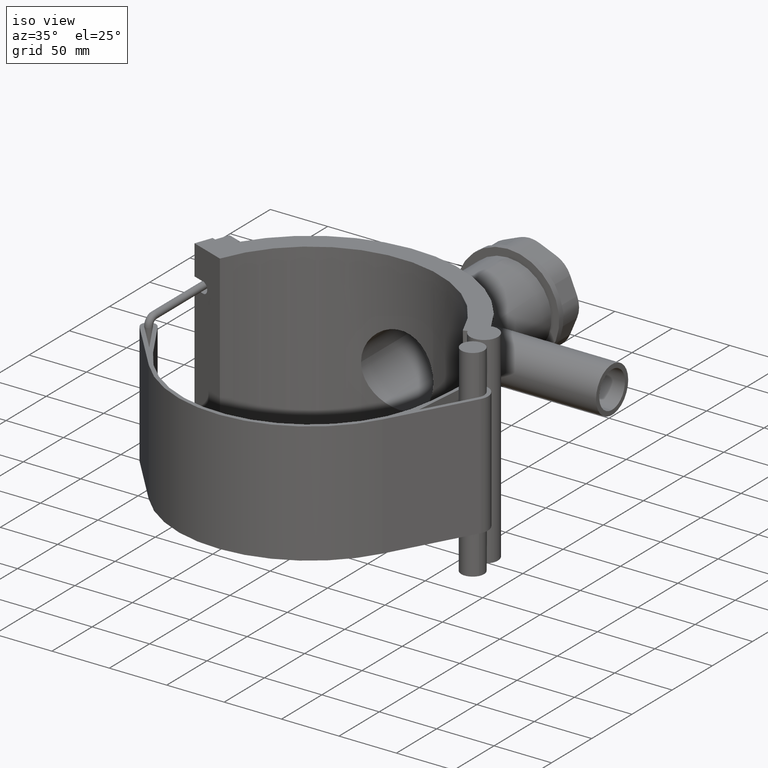
[diagram: clean part render]
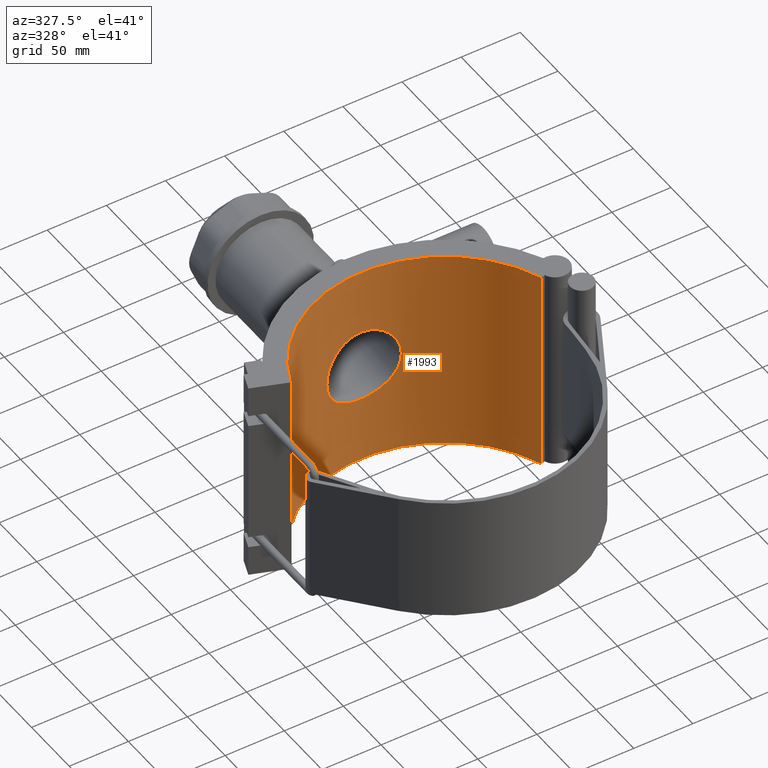
[diagram: tour spotlight — one face highlighted and labeled with its STEP entity id]
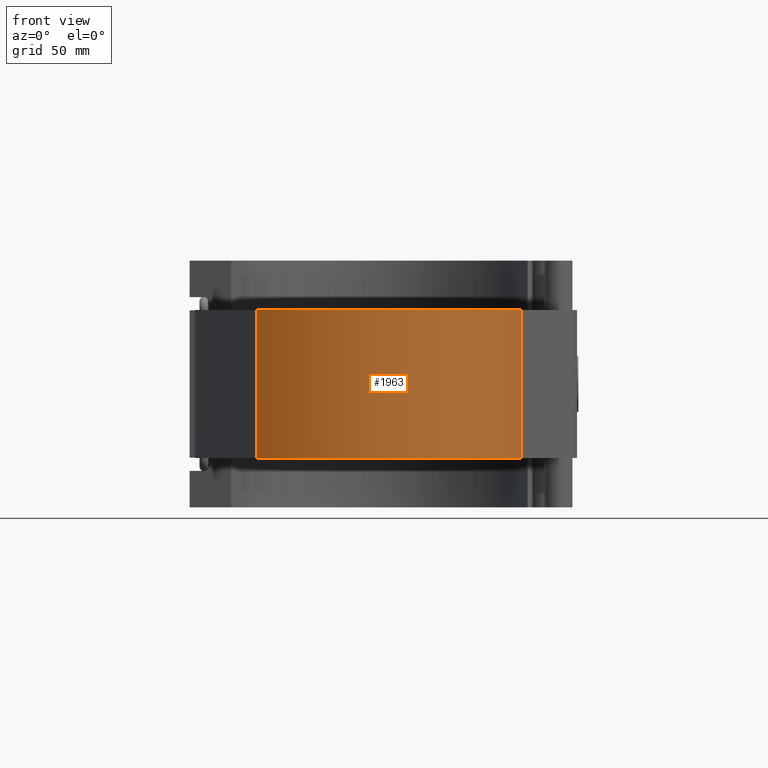
[diagram: tour spotlight — one face highlighted and labeled with its STEP entity id]
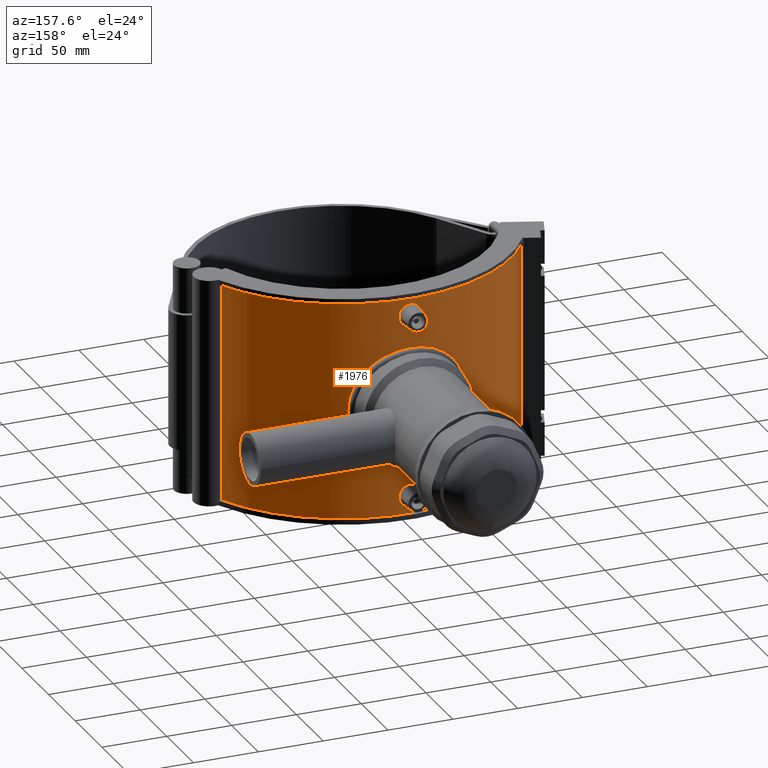
[diagram: tour spotlight — one face highlighted and labeled with its STEP entity id]
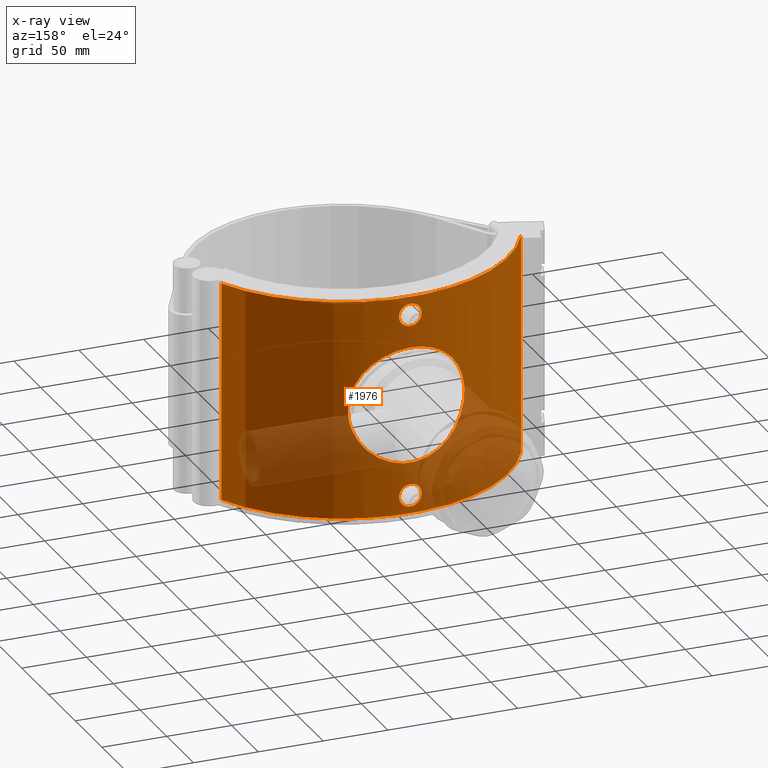
[diagram: x-ray of the same camera — body ghosted, this tour face saturated]
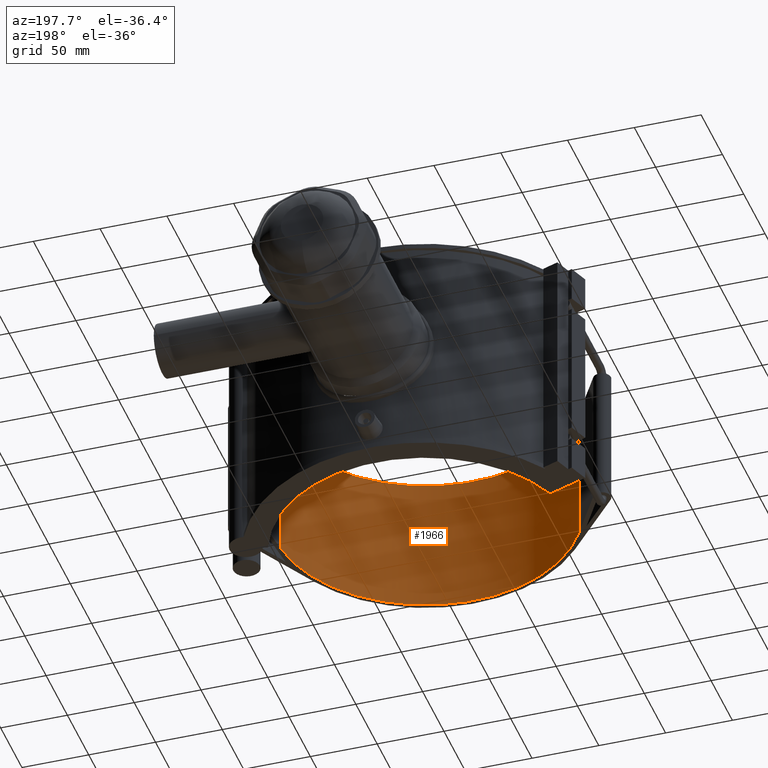
[diagram: tour spotlight — one face highlighted and labeled with its STEP entity id]
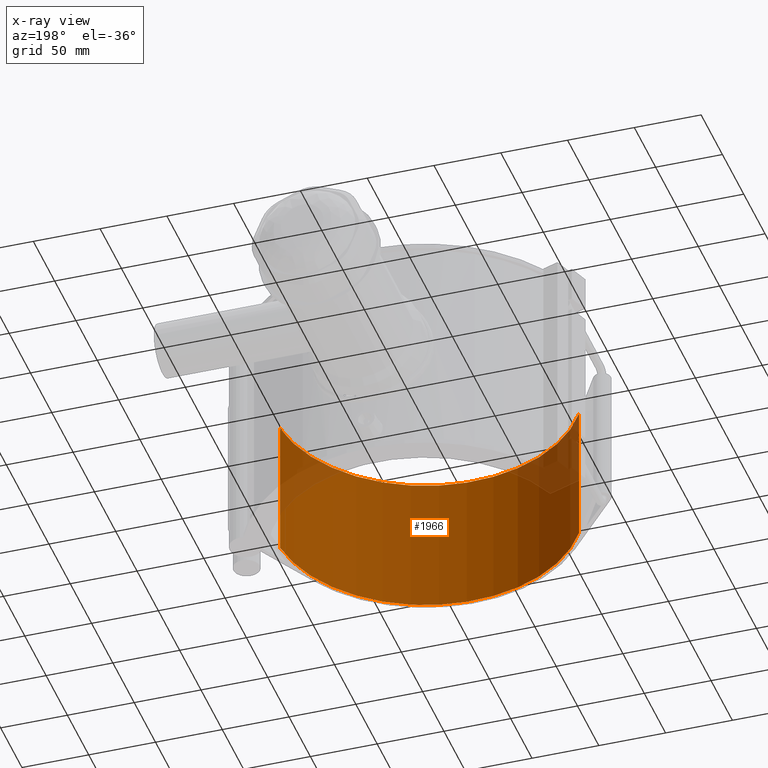
[diagram: x-ray of the same camera — body ghosted, this tour face saturated]
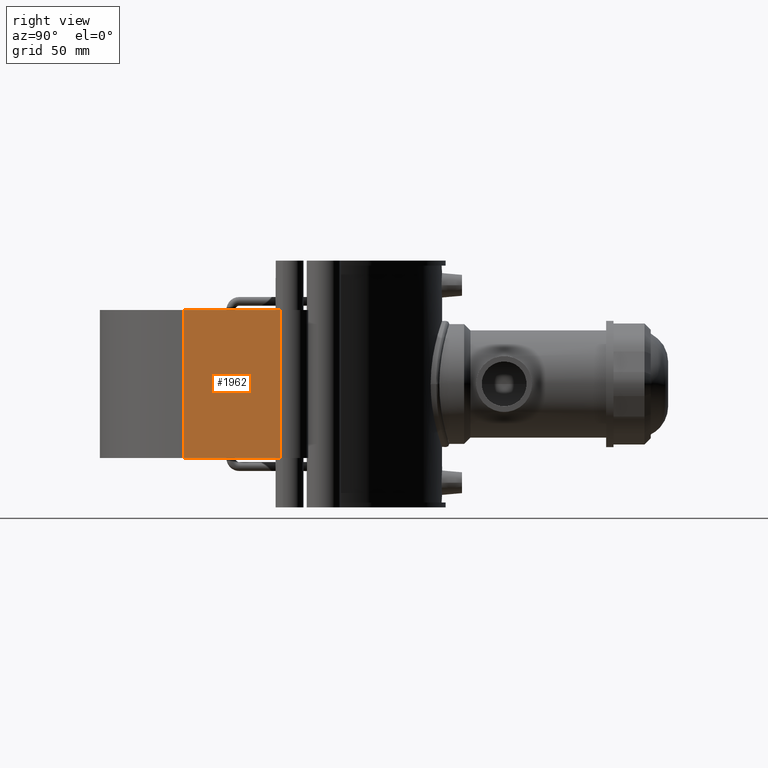
[diagram: tour spotlight — one face highlighted and labeled with its STEP entity id]
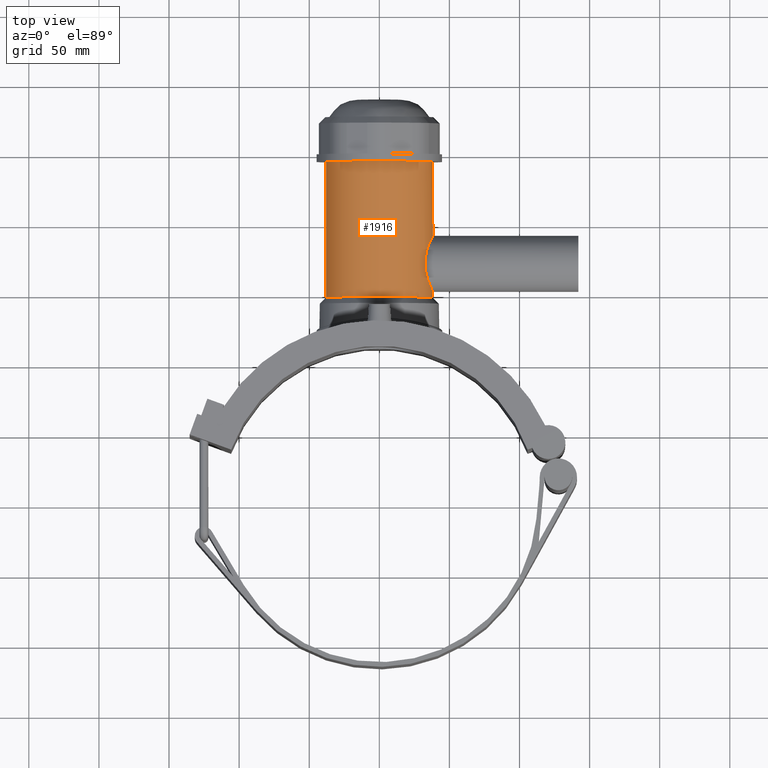
[diagram: tour spotlight — one face highlighted and labeled with its STEP entity id]
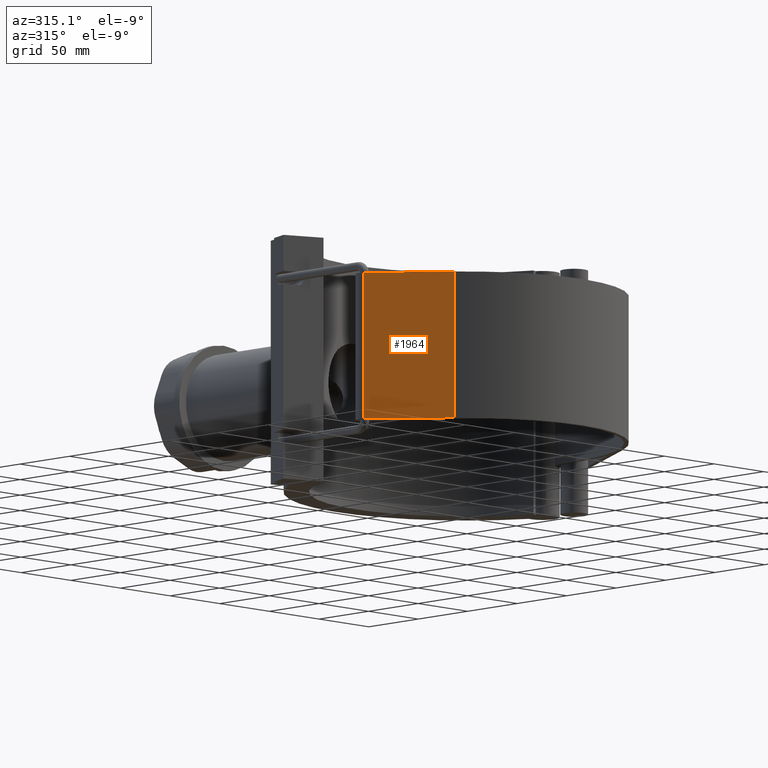
[diagram: tour spotlight — one face highlighted and labeled with its STEP entity id]
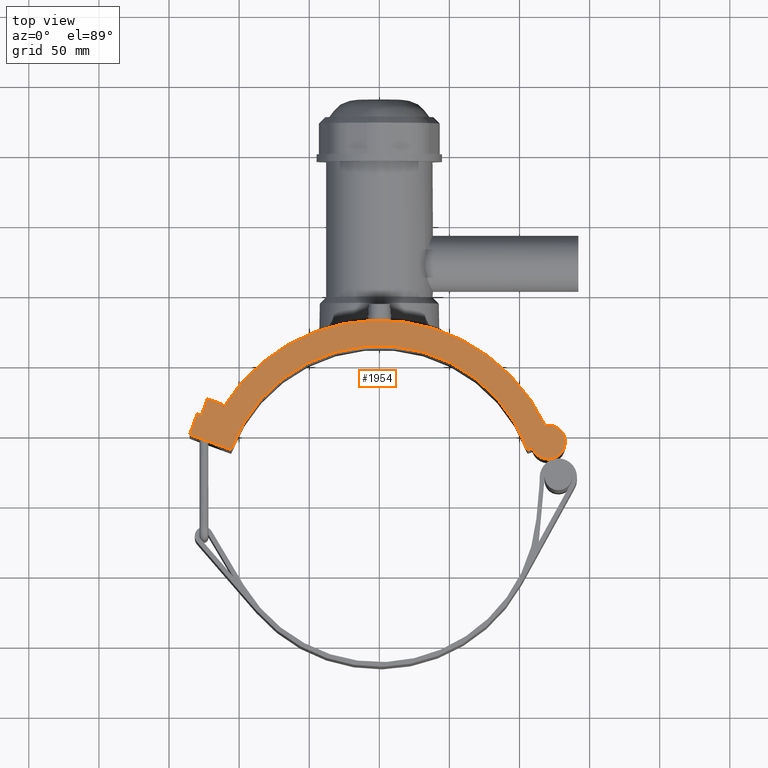
[diagram: tour spotlight — one face highlighted and labeled with its STEP entity id]
A machine part: a face-by-face anatomy tour. The part has 121 B-rep faces; the first image is the clean iso view, then the 8 largest visible faces are spotlighted one at a time (largest first), each with its STEP entity span.

Face 1 — auxiliary view, entity #1993. In plain terms, the highlighted cylindrical surface (partial cylindrical patch) has radius 112.5 mm, axis along (0, 0, 1).
Definition (entity closure, byte-faithful):
#138=LINE('',#3480,#299);
#199=LINE('',#3632,#360);
#299=VECTOR('',#2559,176.);
#360=VECTOR('',#2726,176.);
#399=FACE_BOUND('',#732,.T.);
#400=B_SPLINE_CURVE_WITH_KNOTS('',3,(#2801,#2802,#2803,#2804,#2805,#2806,
#2807,#2808,#2809,#2810,#2811,#2812,#2813,#2814,#2815,#2816,#2817,#2818,
#2819,#2820,#2821,#2822,#2823,#2824,#2825,#2826,#2827,#2828,#2829,#2830,
#2831,#2832,#2833,#2834,#2835,#2836,#2837,#2838,#2839,#2840,#2841,#2842,
#2843,#2844,#2845,#2846,#2847,#2848,#2849,#2850,#2851,#2852,#2853,#2854,
#2855,#2856,#2857,#2858,#2859,#2860,#2861,#2862,#2863,#2864,#2865,#2866),
 .UNSPECIFIED.,.T.,.F.,(4,2,2,2,2,2,2,2,2,2,2,2,2,2,2,2,2,2,2,2,2,2,2,2,
2,2,2,2,2,2,2,2,4),(0.,0.596804156351748,1.1936083127035,1.79041246905524,
2.38721662540699,2.983887413252,3.580558201097,4.17722898894201,4.77389977678702,
5.37057056463202,5.96724135247703,6.56391214032204,7.16058292816704,7.75738708451879,
8.35419124087054,8.95099539722229,9.54779955357403,10.1446037099258,10.7414078662775,
11.3382120226293,11.935016178981,12.531686966826,13.128357754671,13.725028542516,
14.321699330361,14.9183701182061,15.5150409060511,16.1117116938961,16.7083824817411,
17.3051866380928,17.9019907944446,18.4987949507963,19.0955991071481),
 .UNSPECIFIED.);
#451=CYLINDRICAL_SURFACE('',#2207,112.5);
#572=FACE_OUTER_BOUND('',#731,.T.);
#731=EDGE_LOOP('',(#1800,#1801,#1802,#1803));
#732=EDGE_LOOP('',(#1804));
#793=CIRCLE('',#2145,112.5);
#798=CIRCLE('',#2151,112.5);
#819=VERTEX_POINT('',#2800);
#942=VERTEX_POINT('',#3477);
#943=VERTEX_POINT('',#3479);
#970=VERTEX_POINT('',#3572);
#975=VERTEX_POINT('',#3584);
#997=EDGE_CURVE('',#819,#819,#400,.T.);
#1168=EDGE_CURVE('',#943,#942,#138,.T.);
#1216=EDGE_CURVE('',#943,#970,#793,.T.);
#1223=EDGE_CURVE('',#975,#942,#798,.T.);
#1245=EDGE_CURVE('',#975,#970,#199,.T.);
#1800=ORIENTED_EDGE('',*,*,#1168,.T.);
#1801=ORIENTED_EDGE('',*,*,#1223,.F.);
#1802=ORIENTED_EDGE('',*,*,#1245,.T.);
#1803=ORIENTED_EDGE('',*,*,#1216,.F.);
#1804=ORIENTED_EDGE('',*,*,#997,.T.);
#1993=ADVANCED_FACE('',(#572,#399),#451,.F.);
#2145=AXIS2_PLACEMENT_3D('',#3573,#2649,#2650);
#2151=AXIS2_PLACEMENT_3D('',#3586,#2663,#2664);
#2207=AXIS2_PLACEMENT_3D('',#3946,#2793,#2794);
#2559=DIRECTION('',(0.,0.,-1.));
#2649=DIRECTION('center_axis',(0.,0.,-1.));
#2650=DIRECTION('ref_axis',(-1.,0.,0.));
#2663=DIRECTION('center_axis',(0.,0.,1.));
#2664=DIRECTION('ref_axis',(-1.,0.,0.));
#2726=DIRECTION('',(0.,0.,1.));
#2793=DIRECTION('center_axis',(0.,0.,1.));
#2794=DIRECTION('ref_axis',(-1.,0.,0.));
#2800=CARTESIAN_POINT('',(-31.5,108.,4.10782519111308E-14));
#2801=CARTESIAN_POINT('Ctrl Pts',(-31.5,108.,4.10782519111308E-14));
#2802=CARTESIAN_POINT('Ctrl Pts',(-31.5,108.,1.9893471878392));
#2803=CARTESIAN_POINT('Ctrl Pts',(-31.3085110773124,108.056472632274,4.04299343177657));
#2804=CARTESIAN_POINT('Ctrl Pts',(-30.5060158463927,108.285766103481,8.12106268444212));
#2805=CARTESIAN_POINT('Ctrl Pts',(-29.8952216646802,108.458382135623,10.1455389460511));
#2806=CARTESIAN_POINT('Ctrl Pts',(-28.2846979673859,108.889488688104,14.0225588609031));
#2807=CARTESIAN_POINT('Ctrl Pts',(-27.2836896506764,109.147877737738,15.8783939530821));
#2808=CARTESIAN_POINT('Ctrl Pts',(-24.9746366675204,109.699254595361,19.3077870050846));
#2809=CARTESIAN_POINT('Ctrl Pts',(-23.6664124363313,109.991678014231,20.8813147784212));
#2810=CARTESIAN_POINT('Ctrl Pts',(-20.8816259728991,110.55417271525,23.6661012418533));
#2811=CARTESIAN_POINT('Ctrl Pts',(-19.3082441212607,110.84428607985,24.9742894350149));
#2812=CARTESIAN_POINT('Ctrl Pts',(-15.8787639146048,111.387292381637,27.2834799919701));
#2813=CARTESIAN_POINT('Ctrl Pts',(-14.0226958348323,111.63967299379,28.2846477606441));
#2814=CARTESIAN_POINT('Ctrl Pts',(-10.1452162700259,112.058588118119,29.8953490122318));
#2815=CARTESIAN_POINT('Ctrl Pts',(-8.12052044943982,112.225118064668,30.5061618729339));
#2816=CARTESIAN_POINT('Ctrl Pts',(-4.04238779086339,112.445894002171,31.3085909223169));
#2817=CARTESIAN_POINT('Ctrl Pts',(-1.98890262615003,112.5,31.5));
#2818=CARTESIAN_POINT('Ctrl Pts',(1.98890262615002,112.5,31.5));
#2819=CARTESIAN_POINT('Ctrl Pts',(4.04238779086337,112.445894002171,31.3085909223169));
#2820=CARTESIAN_POINT('Ctrl Pts',(8.12052044943981,112.225118064668,30.5061618729339));
#2821=CARTESIAN_POINT('Ctrl Pts',(10.1452162700259,112.058588118119,29.8953490122318));
#2822=CARTESIAN_POINT('Ctrl Pts',(14.0226958348323,111.63967299379,28.2846477606441));
#2823=CARTESIAN_POINT('Ctrl Pts',(15.8787639146048,111.387292381637,27.2834799919701));
#2824=CARTESIAN_POINT('Ctrl Pts',(19.3082441212607,110.84428607985,24.9742894350149));
#2825=CARTESIAN_POINT('Ctrl Pts',(20.8816259728991,110.55417271525,23.6661012418534));
#2826=CARTESIAN_POINT('Ctrl Pts',(23.6664124363313,109.991678014231,20.8813147784212));
#2827=CARTESIAN_POINT('Ctrl Pts',(24.9746366675204,109.699254595361,19.3077870050846));
#2828=CARTESIAN_POINT('Ctrl Pts',(27.2836896506764,109.147877737738,15.8783939530821));
#2829=CARTESIAN_POINT('Ctrl Pts',(28.2846979673859,108.889488688104,14.0225588609031));
#2830=CARTESIAN_POINT('Ctrl Pts',(29.8952216646802,108.458382135623,10.1455389460511));
#2831=CARTESIAN_POINT('Ctrl Pts',(30.5060158463927,108.285766103481,8.12106268444213));
#2832=CARTESIAN_POINT('Ctrl Pts',(31.3085110773124,108.056472632274,4.04299343177657));
#2833=CARTESIAN_POINT('Ctrl Pts',(31.5,108.,1.9893471878392));
#2834=CARTESIAN_POINT('Ctrl Pts',(31.5,108.,-1.98934718783912));
#2835=CARTESIAN_POINT('Ctrl Pts',(31.3085110773124,108.056472632274,-4.04299343177649));
#2836=CARTESIAN_POINT('Ctrl Pts',(30.5060158463927,108.285766103481,-8.12106268444205));
#2837=CARTESIAN_POINT('Ctrl Pts',(29.8952216646802,108.458382135623,-10.145538946051));
#2838=CARTESIAN_POINT('Ctrl Pts',(28.2846979673859,108.889488688104,-14.022558860903));
#2839=CARTESIAN_POINT('Ctrl Pts',(27.2836896506764,109.147877737738,-15.878393953082));
#2840=CARTESIAN_POINT('Ctrl Pts',(24.9746366675204,109.699254595361,-19.3077870050845));
#2841=CARTESIAN_POINT('Ctrl Pts',(23.6664124363313,109.991678014231,-20.8813147784211));
#2842=CARTESIAN_POINT('Ctrl Pts',(20.8816259728991,110.55417271525,-23.6661012418533));
#2843=CARTESIAN_POINT('Ctrl Pts',(19.3082441212607,110.84428607985,-24.9742894350148));
#2844=CARTESIAN_POINT('Ctrl Pts',(15.8787639146048,111.387292381637,-27.28347999197));
#2845=CARTESIAN_POINT('Ctrl Pts',(14.0226958348323,111.63967299379,-28.284647760644));
#2846=CARTESIAN_POINT('Ctrl Pts',(10.1452162700259,112.058588118119,-29.8953490122317));
#2847=CARTESIAN_POINT('Ctrl Pts',(8.12052044943982,112.225118064668,-30.5061618729338));
#2848=CARTESIAN_POINT('Ctrl Pts',(4.04238779086339,112.445894002171,-31.3085909223168));
#2849=CARTESIAN_POINT('Ctrl Pts',(1.98890262615003,112.5,-31.4999999999999));
#2850=CARTESIAN_POINT('Ctrl Pts',(-1.98890262615001,112.5,-31.4999999999999));
#2851=CARTESIAN_POINT('Ctrl Pts',(-4.04238779086337,112.445894002171,-31.3085909223168));
#2852=CARTESIAN_POINT('Ctrl Pts',(-8.1205204494398,112.225118064668,-30.5061618729338));
#2853=CARTESIAN_POINT('Ctrl Pts',(-10.1452162700259,112.058588118119,-29.8953490122317));
#2854=CARTESIAN_POINT('Ctrl Pts',(-14.0226958348323,111.63967299379,-28.284647760644));
#2855=CARTESIAN_POINT('Ctrl Pts',(-15.8787639146048,111.387292381637,-27.2834799919701));
#2856=CARTESIAN_POINT('Ctrl Pts',(-19.3082441212607,110.84428607985,-24.9742894350149));
#2857=CARTESIAN_POINT('Ctrl Pts',(-20.8816259728991,110.55417271525,-23.6661012418533));
#2858=CARTESIAN_POINT('Ctrl Pts',(-23.6664124363313,109.991678014231,-20.8813147784212));
#2859=CARTESIAN_POINT('Ctrl Pts',(-24.9746366675204,109.699254595361,-19.3077870050845));
#2860=CARTESIAN_POINT('Ctrl Pts',(-27.2836896506764,109.147877737738,-15.878393953082));
#2861=CARTESIAN_POINT('Ctrl Pts',(-28.2846979673859,108.889488688104,-14.022558860903));
#2862=CARTESIAN_POINT('Ctrl Pts',(-29.8952216646802,108.458382135622,-10.145538946051));
#2863=CARTESIAN_POINT('Ctrl Pts',(-30.5060158463927,108.285766103481,-8.12106268444204));
#2864=CARTESIAN_POINT('Ctrl Pts',(-31.3085110773124,108.056472632274,-4.04299343177648));
#2865=CARTESIAN_POINT('Ctrl Pts',(-31.5,108.,-1.98934718783912));
#2866=CARTESIAN_POINT('Ctrl Pts',(-31.5,108.,4.21884749357559E-14));
#3477=CARTESIAN_POINT('',(-105.715419838415,38.4772661241378,-88.));
#3479=CARTESIAN_POINT('',(-105.715419838415,38.4772661241378,88.));
#3480=CARTESIAN_POINT('',(-105.715419838415,38.4772661241378,0.));
#3572=CARTESIAN_POINT('',(105.715419838415,38.4772661241377,88.));
#3573=CARTESIAN_POINT('Origin',(0.,0.,88.));
#3584=CARTESIAN_POINT('',(105.715419838415,38.4772661241377,-88.));
#3586=CARTESIAN_POINT('Origin',(0.,0.,-88.));
#3632=CARTESIAN_POINT('',(105.715419838415,38.4772661241377,0.));
#3946=CARTESIAN_POINT('Origin',(0.,0.,0.));

Face 2 — front view, entity #1963. In plain terms, the highlighted cylindrical surface (partial cylindrical patch) has radius 115.875 mm, axis along (0, 0, 1).
Definition (entity closure, byte-faithful):
#190=LINE('',#3602,#351);
#191=LINE('',#3604,#352);
#351=VECTOR('',#2687,105.6);
#352=VECTOR('',#2690,105.6);
#437=CYLINDRICAL_SURFACE('',#2159,115.875);
#542=FACE_OUTER_BOUND('',#684,.T.);
#684=EDGE_LOOP('',(#1699,#1700,#1701,#1702));
#769=CIRCLE('',#2082,115.875);
#777=CIRCLE('',#2091,115.875);
#891=VERTEX_POINT('',#3340);
#892=VERTEX_POINT('',#3342);
#906=VERTEX_POINT('',#3372);
#907=VERTEX_POINT('',#3374);
#1105=EDGE_CURVE('',#891,#892,#769,.T.);
#1121=EDGE_CURVE('',#906,#907,#777,.T.);
#1232=EDGE_CURVE('',#891,#907,#190,.T.);
#1233=EDGE_CURVE('',#892,#906,#191,.T.);
#1699=ORIENTED_EDGE('',*,*,#1232,.T.);
#1700=ORIENTED_EDGE('',*,*,#1121,.F.);
#1701=ORIENTED_EDGE('',*,*,#1233,.F.);
#1702=ORIENTED_EDGE('',*,*,#1105,.F.);
#1963=ADVANCED_FACE('',(#542),#437,.T.);
#2082=AXIS2_PLACEMENT_3D('',#3343,#2446,#2447);
#2091=AXIS2_PLACEMENT_3D('',#3375,#2472,#2473);
#2159=AXIS2_PLACEMENT_3D('',#3603,#2688,#2689);
#2446=DIRECTION('center_axis',(0.,0.,-1.));
#2447=DIRECTION('ref_axis',(0.98858601250743,0.150657545030643,0.));
#2472=DIRECTION('center_axis',(0.,0.,1.));
#2473=DIRECTION('ref_axis',(0.98858601250743,0.150657545030643,0.));
#2687=DIRECTION('',(0.,0.,1.));
#2688=DIRECTION('center_axis',(0.,0.,1.));
#2689=DIRECTION('ref_axis',(0.98858601250743,0.150657545030643,0.));
#2690=DIRECTION('',(0.,0.,1.));
#3340=CARTESIAN_POINT('',(101.540132348754,-55.826670575966,-52.8));
#3342=CARTESIAN_POINT('',(-87.6365039171833,-75.8080391922487,-52.8));
#3343=CARTESIAN_POINT('Origin',(0.,0.,-52.8));
#3372=CARTESIAN_POINT('',(-87.6365039171833,-75.8080391922487,52.8));
#3374=CARTESIAN_POINT('',(101.540132348754,-55.826670575966,52.8));
#3375=CARTESIAN_POINT('Origin',(0.,0.,52.8));
#3602=CARTESIAN_POINT('',(101.540132348754,-55.826670575966,0.));
#3603=CARTESIAN_POINT('Origin',(0.,0.,0.));
#3604=CARTESIAN_POINT('',(-87.6365039171833,-75.8080391922487,0.));

Face 3 — auxiliary view, entity #1976. An x-ray twin of the same camera follows (body ghosted, this face saturated) — the face is partly hidden behind the body. In plain terms, the highlighted cylindrical surface (partial cylindrical patch) has radius 128.25 mm, axis along (0, 0, 1).
Definition (entity closure, byte-faithful):
#159=LINE('',#3534,#320);
#197=LINE('',#3627,#358);
#320=VECTOR('',#2616,168.96);
#358=VECTOR('',#2720,168.96);
#385=FACE_BOUND('',#701,.T.);
#386=FACE_BOUND('',#702,.T.);
#387=FACE_BOUND('',#703,.T.);
#410=B_SPLINE_CURVE_WITH_KNOTS('',3,(#3640,#3641,#3642,#3643,#3644,#3645,
#3646,#3647,#3648,#3649,#3650,#3651,#3652,#3653,#3654,#3655,#3656,#3657,
#3658,#3659,#3660,#3661,#3662,#3663,#3664,#3665,#3666,#3667,#3668,#3669,
#3670,#3671,#3672,#3673,#3674,#3675,#3676,#3677,#3678,#3679,#3680,#3681,
#3682,#3683,#3684,#3685,#3686,#3687,#3688,#3689,#3690,#3691,#3692,#3693,
#3694,#3695,#3696,#3697,#3698,#3699,#3700,#3701,#3702,#3703,#3704,#3705),
 .UNSPECIFIED.,.T.,.F.,(4,2,2,2,2,2,2,2,2,2,2,2,2,2,2,2,2,2,2,2,2,2,2,2,
2,2,2,2,2,2,2,2,4),(0.,0.855728946250435,1.71145789250087,2.56718683875131,
3.42291578500174,4.27815145924942,5.1333871334971,5.98862280774479,6.84385848199247,
7.69909415624015,8.55432983048783,9.40956550473551,10.2648011789832,11.1205301252336,
11.9762590714841,12.8319880177345,13.6877169639849,14.5434459102354,15.3991748564858,
16.2549038027362,17.1106327489867,17.9658684232344,18.821104097482,19.6763397717297,
20.5315754459774,21.3868111202251,22.2420467944728,23.0972824687205,23.9525181429681,
24.8082470892186,25.663976035469,26.5197049817194,27.3754339279699),
 .UNSPECIFIED.);
#411=B_SPLINE_CURVE_WITH_KNOTS('',3,(#3707,#3708,#3709,#3710,#3711,#3712,
#3713,#3714,#3715,#3716,#3717,#3718,#3719,#3720,#3721,#3722,#3723,#3724,
#3725,#3726,#3727,#3728,#3729,#3730,#3731,#3732,#3733,#3734,#3735,#3736,
#3737,#3738,#3739,#3740),.UNSPECIFIED.,.T.,.F.,(4,2,2,2,2,2,2,2,2,2,2,2,
2,2,2,2,4),(0.,0.330196286126767,0.660392572253533,0.990362194504793,1.32033181675605,
1.65030143900731,1.98027106125857,2.31046734738534,2.64066363351211,2.97085991963887,
3.30105620576564,3.6310258280169,3.96099545026816,4.29096507251942,4.62093469477068,
4.95113098089744,5.28132726702421),.UNSPECIFIED.);
#412=B_SPLINE_CURVE_WITH_KNOTS('',3,(#3742,#3743,#3744,#3745,#3746,#3747,
#3748,#3749,#3750,#3751,#3752,#3753,#3754,#3755,#3756,#3757,#3758,#3759,
#3760,#3761,#3762,#3763,#3764,#3765,#3766,#3767,#3768,#3769,#3770,#3771,
#3772,#3773,#3774,#3775),.UNSPECIFIED.,.T.,.F.,(4,2,2,2,2,2,2,2,2,2,2,2,
2,2,2,2,4),(0.,0.330196286126767,0.660392572253533,0.990362194504793,1.32033181675605,
1.65030143900731,1.98027106125857,2.31046734738534,2.64066363351211,2.97085991963887,
3.30105620576564,3.6310258280169,3.96099545026816,4.29096507251942,4.62093469477068,
4.95113098089744,5.28132726702421),.UNSPECIFIED.);
#444=CYLINDRICAL_SURFACE('',#2178,128.25);
#555=FACE_OUTER_BOUND('',#700,.T.);
#700=EDGE_LOOP('',(#1754,#1755,#1756,#1757));
#701=EDGE_LOOP('',(#1758));
#702=EDGE_LOOP('',(#1759));
#703=EDGE_LOOP('',(#1760));
#804=CIRCLE('',#2177,128.25);
#805=CIRCLE('',#2179,128.25);
#956=VERTEX_POINT('',#3530);
#958=VERTEX_POINT('',#3533);
#979=VERTEX_POINT('',#3624);
#980=VERTEX_POINT('',#3626);
#982=VERTEX_POINT('',#3639);
#983=VERTEX_POINT('',#3706);
#984=VERTEX_POINT('',#3741);
#1195=EDGE_CURVE('',#958,#956,#159,.T.);
#1242=EDGE_CURVE('',#980,#979,#197,.T.);
#1247=EDGE_CURVE('',#956,#980,#804,.T.);
#1248=EDGE_CURVE('',#979,#958,#805,.T.);
#1249=EDGE_CURVE('',#982,#982,#410,.T.);
#1250=EDGE_CURVE('',#983,#983,#411,.T.);
#1251=EDGE_CURVE('',#984,#984,#412,.T.);
#1754=ORIENTED_EDGE('',*,*,#1195,.T.);
#1755=ORIENTED_EDGE('',*,*,#1247,.T.);
#1756=ORIENTED_EDGE('',*,*,#1242,.T.);
#1757=ORIENTED_EDGE('',*,*,#1248,.T.);
#1758=ORIENTED_EDGE('',*,*,#1249,.T.);
#1759=ORIENTED_EDGE('',*,*,#1250,.T.);
#1760=ORIENTED_EDGE('',*,*,#1251,.T.);
#1976=ADVANCED_FACE('',(#555,#385,#386,#387),#444,.T.);
#2177=AXIS2_PLACEMENT_3D('',#3636,#2733,#2734);
#2178=AXIS2_PLACEMENT_3D('',#3637,#2735,#2736);
#2179=AXIS2_PLACEMENT_3D('',#3638,#2737,#2738);
#2616=DIRECTION('',(0.,0.,1.));
#2720=DIRECTION('',(0.,0.,-1.));
#2733=DIRECTION('center_axis',(0.,0.,-1.));
#2734=DIRECTION('ref_axis',(1.,0.,0.));
#2735=DIRECTION('center_axis',(0.,0.,1.));
#2736=DIRECTION('ref_axis',(1.,0.,0.));
#2737=DIRECTION('center_axis',(0.,0.,1.));
#2738=DIRECTION('ref_axis',(1.,0.,0.));
#3530=CARTESIAN_POINT('',(-114.216527132582,58.3322160540136,84.48));
#3533=CARTESIAN_POINT('',(-114.216527132582,58.3322160540136,-84.48));
#3534=CARTESIAN_POINT('',(-114.216527132582,58.3322160540136,0.));
#3624=CARTESIAN_POINT('',(115.838757280186,55.0403925474944,-84.48));
#3626=CARTESIAN_POINT('',(115.838757280186,55.0403925474944,84.48));
#3627=CARTESIAN_POINT('',(115.838757280186,55.0403925474943,0.));
#3636=CARTESIAN_POINT('Origin',(0.,0.,84.48));
#3637=CARTESIAN_POINT('Origin',(0.,0.,0.));
#3638=CARTESIAN_POINT('Origin',(0.,0.,-84.48));
#3639=CARTESIAN_POINT('',(45.,120.096055305743,0.));
#3640=CARTESIAN_POINT('Ctrl Pts',(45.,120.096055305743,1.11022302462516E-15));
#3641=CARTESIAN_POINT('Ctrl Pts',(45.,120.096055305743,2.85242982083479));
#3642=CARTESIAN_POINT('Ctrl Pts',(44.724428450353,120.200514769227,5.79357665491238));
#3643=CARTESIAN_POINT('Ctrl Pts',(43.5733880070998,120.622543945769,11.6275487061537));
#3644=CARTESIAN_POINT('Ctrl Pts',(42.6982619080095,120.939665787067,14.520473941499));
#3645=CARTESIAN_POINT('Ctrl Pts',(40.3950033797142,121.728336355425,20.0556632606961));
#3646=CARTESIAN_POINT('Ctrl Pts',(38.9650444193638,122.199645347404,22.7027991987814));
#3647=CARTESIAN_POINT('Ctrl Pts',(35.6699383820364,123.201799925917,27.5925220770062));
#3648=CARTESIAN_POINT('Ctrl Pts',(33.8044936485425,123.731629249055,29.8351166582468));
#3649=CARTESIAN_POINT('Ctrl Pts',(29.8362607018989,124.747956204361,33.8033496048904));
#3650=CARTESIAN_POINT('Ctrl Pts',(27.5942096504032,125.27106308028,35.6686546168075));
#3651=CARTESIAN_POINT('Ctrl Pts',(22.7041865402505,126.248958668781,38.9642559565315));
#3652=CARTESIAN_POINT('Ctrl Pts',(20.0562058908857,126.702869747262,40.3947998925188));
#3653=CARTESIAN_POINT('Ctrl Pts',(14.5193267893956,127.456101252927,42.6987169416773));
#3654=CARTESIAN_POINT('Ctrl Pts',(11.6255815568741,127.755459103685,43.5739199645984));
#3655=CARTESIAN_POINT('Ctrl Pts',(5.79135139277384,128.152533047064,44.7247235506191));
#3656=CARTESIAN_POINT('Ctrl Pts',(2.85078558082561,128.25,45.));
#3657=CARTESIAN_POINT('Ctrl Pts',(-2.8507855808256,128.25,45.));
#3658=CARTESIAN_POINT('Ctrl Pts',(-5.79135139277383,128.152533047064,44.7247235506191));
#3659=CARTESIAN_POINT('Ctrl Pts',(-11.6255815568741,127.755459103685,43.5739199645984));
#3660=CARTESIAN_POINT('Ctrl Pts',(-14.5193267893956,127.456101252927,42.6987169416773));
#3661=CARTESIAN_POINT('Ctrl Pts',(-20.0562058908857,126.702869747262,40.3947998925188));
#3662=CARTESIAN_POINT('Ctrl Pts',(-22.7041865402505,126.248958668781,38.9642559565315));
#3663=CARTESIAN_POINT('Ctrl Pts',(-27.5942096504032,125.27106308028,35.6686546168076));
#3664=CARTESIAN_POINT('Ctrl Pts',(-29.8362607018989,124.747956204361,33.8033496048904));
#3665=CARTESIAN_POINT('Ctrl Pts',(-33.8044936485425,123.731629249055,29.8351166582468));
#3666=CARTESIAN_POINT('Ctrl Pts',(-35.6699383820364,123.201799925917,27.5925220770062));
#3667=CARTESIAN_POINT('Ctrl Pts',(-38.9650444193638,122.199645347404,22.7027991987814));
#3668=CARTESIAN_POINT('Ctrl Pts',(-40.3950033797142,121.728336355425,20.0556632606961));
#3669=CARTESIAN_POINT('Ctrl Pts',(-42.6982619080095,120.939665787067,14.520473941499));
#3670=CARTESIAN_POINT('Ctrl Pts',(-43.5733880070998,120.622543945769,11.6275487061537));
#3671=CARTESIAN_POINT('Ctrl Pts',(-44.724428450353,120.200514769227,5.79357665491237));
#3672=CARTESIAN_POINT('Ctrl Pts',(-45.,120.096055305743,2.85242982083478));
#3673=CARTESIAN_POINT('Ctrl Pts',(-45.,120.096055305743,-2.85242982083478));
#3674=CARTESIAN_POINT('Ctrl Pts',(-44.724428450353,120.200514769227,-5.79357665491238));
#3675=CARTESIAN_POINT('Ctrl Pts',(-43.5733880070998,120.622543945769,-11.6275487061537));
#3676=CARTESIAN_POINT('Ctrl Pts',(-42.6982619080095,120.939665787067,-14.520473941499));
#3677=CARTESIAN_POINT('Ctrl Pts',(-40.3950033797142,121.728336355425,-20.0556632606961));
#3678=CARTESIAN_POINT('Ctrl Pts',(-38.9650444193638,122.199645347404,-22.7027991987815));
#3679=CARTESIAN_POINT('Ctrl Pts',(-35.6699383820364,123.201799925917,-27.5925220770062));
#3680=CARTESIAN_POINT('Ctrl Pts',(-33.8044936485425,123.731629249055,-29.8351166582468));
#3681=CARTESIAN_POINT('Ctrl Pts',(-29.8362607018989,124.747956204361,-33.8033496048904));
#3682=CARTESIAN_POINT('Ctrl Pts',(-27.5942096504032,125.27106308028,-35.6686546168076));
#3683=CARTESIAN_POINT('Ctrl Pts',(-22.7041865402505,126.248958668781,-38.9642559565316));
#3684=CARTESIAN_POINT('Ctrl Pts',(-20.0562058908857,126.702869747262,-40.3947998925188));
#3685=CARTESIAN_POINT('Ctrl Pts',(-14.5193267893956,127.456101252927,-42.6987169416773));
#3686=CARTESIAN_POINT('Ctrl Pts',(-11.6255815568741,127.755459103685,-43.5739199645984));
#3687=CARTESIAN_POINT('Ctrl Pts',(-5.79135139277384,128.152533047064,-44.7247235506191));
#3688=CARTESIAN_POINT('Ctrl Pts',(-2.85078558082561,128.25,-45.));
#3689=CARTESIAN_POINT('Ctrl Pts',(2.85078558082559,128.25,-45.));
#3690=CARTESIAN_POINT('Ctrl Pts',(5.79135139277381,128.152533047064,-44.7247235506191));
#3691=CARTESIAN_POINT('Ctrl Pts',(11.6255815568741,127.755459103685,-43.5739199645984));
#3692=CARTESIAN_POINT('Ctrl Pts',(14.5193267893956,127.456101252927,-42.6987169416773));
#3693=CARTESIAN_POINT('Ctrl Pts',(20.0562058908857,126.702869747262,-40.3947998925188));
#3694=CARTESIAN_POINT('Ctrl Pts',(22.7041865402505,126.248958668781,-38.9642559565315));
#3695=CARTESIAN_POINT('Ctrl Pts',(27.5942096504032,125.27106308028,-35.6686546168075));
#3696=CARTESIAN_POINT('Ctrl Pts',(29.8362607018989,124.747956204361,-33.8033496048904));
#3697=CARTESIAN_POINT('Ctrl Pts',(33.8044936485425,123.731629249055,-29.8351166582468));
#3698=CARTESIAN_POINT('Ctrl Pts',(35.6699383820364,123.201799925917,-27.5925220770062));
#3699=CARTESIAN_POINT('Ctrl Pts',(38.9650444193638,122.199645347404,-22.7027991987814));
#3700=CARTESIAN_POINT('Ctrl Pts',(40.3950033797142,121.728336355425,-20.0556632606961));
#3701=CARTESIAN_POINT('Ctrl Pts',(42.6982619080095,120.939665787067,-14.520473941499));
#3702=CARTESIAN_POINT('Ctrl Pts',(43.5733880070998,120.622543945769,-11.6275487061537));
#3703=CARTESIAN_POINT('Ctrl Pts',(44.724428450353,120.200514769227,-5.79357665491239));
#3704=CARTESIAN_POINT('Ctrl Pts',(45.,120.096055305743,-2.85242982083479));
#3705=CARTESIAN_POINT('Ctrl Pts',(45.,120.096055305743,1.11022302462516E-15));
#3706=CARTESIAN_POINT('',(8.77299610992734,127.949587882319,-70.4));
#3707=CARTESIAN_POINT('Ctrl Pts',(8.77299610992734,127.949587882319,-70.4));
#3708=CARTESIAN_POINT('Ctrl Pts',(8.77299610992734,127.949587882319,-69.2993457129108));
#3709=CARTESIAN_POINT('Ctrl Pts',(8.55187424562502,127.96534787823,-68.1259527139558));
#3710=CARTESIAN_POINT('Ctrl Pts',(7.6540934223627,128.022184263365,-65.9690307106768));
#3711=CARTESIAN_POINT('Ctrl Pts',(6.97747344776285,128.062432873762,-64.9854637470189));
#3712=CARTESIAN_POINT('Ctrl Pts',(5.41861622576006,128.137853935393,-63.4341064530373));
#3713=CARTESIAN_POINT('Ctrl Pts',(4.43260654007097,128.177927088609,-62.7625109612075));
#3714=CARTESIAN_POINT('Ctrl Pts',(2.27325837545014,128.234399790843,-61.8721006131769));
#3715=CARTESIAN_POINT('Ctrl Pts',(1.09989874083753,128.25,-61.6532865447556));
#3716=CARTESIAN_POINT('Ctrl Pts',(-1.09989874083753,128.25,-61.6532865447556));
#3717=CARTESIAN_POINT('Ctrl Pts',(-2.27325837545014,128.234399790843,-61.8721006131769));
#3718=CARTESIAN_POINT('Ctrl Pts',(-4.43260654007097,128.177927088609,-62.7625109612075));
#3719=CARTESIAN_POINT('Ctrl Pts',(-5.41861622576006,128.137853935393,-63.4341064530373));
#3720=CARTESIAN_POINT('Ctrl Pts',(-6.97747344776285,128.062432873762,-64.9854637470189));
#3721=CARTESIAN_POINT('Ctrl Pts',(-7.6540934223627,128.022184263365,-65.9690307106768));
#3722=CARTESIAN_POINT('Ctrl Pts',(-8.55187424562502,127.96534787823,-68.1259527139558));
#3723=CARTESIAN_POINT('Ctrl Pts',(-8.77299610992734,127.949587882319,-69.2993457129108));
#3724=CARTESIAN_POINT('Ctrl Pts',(-8.77299610992734,127.949587882319,-71.5006542870892));
#3725=CARTESIAN_POINT('Ctrl Pts',(-8.55187424562502,127.96534787823,-72.6740472860442));
#3726=CARTESIAN_POINT('Ctrl Pts',(-7.6540934223627,128.022184263365,-74.8309692893232));
#3727=CARTESIAN_POINT('Ctrl Pts',(-6.97747344776285,128.062432873762,-75.8145362529812));
#3728=CARTESIAN_POINT('Ctrl Pts',(-5.41861622576006,128.137853935393,-77.3658935469627));
#3729=CARTESIAN_POINT('Ctrl Pts',(-4.43260654007097,128.177927088609,-78.0374890387926));
#3730=CARTESIAN_POINT('Ctrl Pts',(-2.27325837545015,128.234399790843,-78.9278993868231));
#3731=CARTESIAN_POINT('Ctrl Pts',(-1.09989874083753,128.25,-79.1467134552444));
#3732=CARTESIAN_POINT('Ctrl Pts',(1.09989874083753,128.25,-79.1467134552444));
#3733=CARTESIAN_POINT('Ctrl Pts',(2.27325837545014,128.234399790843,-78.9278993868231));
#3734=CARTESIAN_POINT('Ctrl Pts',(4.43260654007097,128.177927088609,-78.0374890387926));
#3735=CARTESIAN_POINT('Ctrl Pts',(5.41861622576006,128.137853935393,-77.3658935469627));
#3736=CARTESIAN_POINT('Ctrl Pts',(6.97747344776284,128.062432873762,-75.8145362529812));
#3737=CARTESIAN_POINT('Ctrl Pts',(7.6540934223627,128.022184263365,-74.8309692893232));
#3738=CARTESIAN_POINT('Ctrl Pts',(8.55187424562502,127.96534787823,-72.6740472860442));
#3739=CARTESIAN_POINT('Ctrl Pts',(8.77299610992734,127.949587882319,-71.5006542870892));
#3740=CARTESIAN_POINT('Ctrl Pts',(8.77299610992734,127.949587882319,-70.4));
#3741=CARTESIAN_POINT('',(8.77299610992734,127.949587882319,70.4));
#3742=CARTESIAN_POINT('Ctrl Pts',(-8.77299610992734,127.949587882319,70.4));
#3743=CARTESIAN_POINT('Ctrl Pts',(-8.77299610992734,127.949587882319,69.2993457129108));
#3744=CARTESIAN_POINT('Ctrl Pts',(-8.55187424562502,127.96534787823,68.1259527139558));
#3745=CARTESIAN_POINT('Ctrl Pts',(-7.6540934223627,128.022184263365,65.9690307106768));
#3746=CARTESIAN_POINT('Ctrl Pts',(-6.97747344776285,128.062432873762,64.9854637470189));
#3747=CARTESIAN_POINT('Ctrl Pts',(-5.41861622576006,128.137853935393,63.4341064530373));
#3748=CARTESIAN_POINT('Ctrl Pts',(-4.43260654007097,128.177927088609,62.7625109612075));
#3749=CARTESIAN_POINT('Ctrl Pts',(-2.27325837545014,128.234399790843,61.8721006131769));
#3750=CARTESIAN_POINT('Ctrl Pts',(-1.09989874083753,128.25,61.6532865447556));
#3751=CARTESIAN_POINT('Ctrl Pts',(1.09989874083753,128.25,61.6532865447556));
#3752=CARTESIAN_POINT('Ctrl Pts',(2.27325837545014,128.234399790843,61.8721006131769));
#3753=CARTESIAN_POINT('Ctrl Pts',(4.43260654007097,128.177927088609,62.7625109612075));
#3754=CARTESIAN_POINT('Ctrl Pts',(5.41861622576006,128.137853935393,63.4341064530373));
#3755=CARTESIAN_POINT('Ctrl Pts',(6.97747344776285,128.062432873762,64.9854637470189));
#3756=CARTESIAN_POINT('Ctrl Pts',(7.6540934223627,128.022184263365,65.9690307106768));
#3757=CARTESIAN_POINT('Ctrl Pts',(8.55187424562502,127.96534787823,68.1259527139558));
#3758=CARTESIAN_POINT('Ctrl Pts',(8.77299610992734,127.949587882319,69.2993457129108));
#3759=CARTESIAN_POINT('Ctrl Pts',(8.77299610992734,127.949587882319,71.5006542870892));
#3760=CARTESIAN_POINT('Ctrl Pts',(8.55187424562502,127.96534787823,72.6740472860442));
#3761=CARTESIAN_POINT('Ctrl Pts',(7.6540934223627,128.022184263365,74.8309692893232));
#3762=CARTESIAN_POINT('Ctrl Pts',(6.97747344776285,128.062432873762,75.8145362529812));
#3763=CARTESIAN_POINT('Ctrl Pts',(5.41861622576006,128.137853935393,77.3658935469627));
#3764=CARTESIAN_POINT('Ctrl Pts',(4.43260654007097,128.177927088609,78.0374890387926));
#3765=CARTESIAN_POINT('Ctrl Pts',(2.27325837545015,128.234399790843,78.9278993868231));
#3766=CARTESIAN_POINT('Ctrl Pts',(1.09989874083753,128.25,79.1467134552444));
#3767=CARTESIAN_POINT('Ctrl Pts',(-1.09989874083753,128.25,79.1467134552444));
#3768=CARTESIAN_POINT('Ctrl Pts',(-2.27325837545014,128.234399790843,78.9278993868231));
#3769=CARTESIAN_POINT('Ctrl Pts',(-4.43260654007097,128.177927088609,78.0374890387926));
#3770=CARTESIAN_POINT('Ctrl Pts',(-5.41861622576006,128.137853935393,77.3658935469627));
#3771=CARTESIAN_POINT('Ctrl Pts',(-6.97747344776285,128.062432873762,75.8145362529812));
#3772=CARTESIAN_POINT('Ctrl Pts',(-7.6540934223627,128.022184263365,74.8309692893232));
#3773=CARTESIAN_POINT('Ctrl Pts',(-8.55187424562502,127.96534787823,72.6740472860442));
#3774=CARTESIAN_POINT('Ctrl Pts',(-8.77299610992734,127.949587882319,71.5006542870892));
#3775=CARTESIAN_POINT('Ctrl Pts',(-8.77299610992734,127.949587882319,70.4));

Face 4 — auxiliary view, entity #1966. An x-ray twin of the same camera follows (body ghosted, this face saturated) — the face is partly hidden behind the body. In plain terms, the highlighted cylindrical surface (partial cylindrical patch) has radius 112.5 mm, axis along (0, 0, 1).
Definition (entity closure, byte-faithful):
#187=LINE('',#3597,#348);
#194=LINE('',#3609,#355);
#348=VECTOR('',#2680,105.6);
#355=VECTOR('',#2697,105.6);
#438=CYLINDRICAL_SURFACE('',#2162,112.5);
#545=FACE_OUTER_BOUND('',#687,.T.);
#687=EDGE_LOOP('',(#1711,#1712,#1713,#1714));
#771=CIRCLE('',#2084,112.5);
#775=CIRCLE('',#2089,112.5);
#895=VERTEX_POINT('',#3348);
#896=VERTEX_POINT('',#3350);
#902=VERTEX_POINT('',#3364);
#903=VERTEX_POINT('',#3366);
#1109=EDGE_CURVE('',#895,#896,#771,.T.);
#1117=EDGE_CURVE('',#902,#903,#775,.T.);
#1229=EDGE_CURVE('',#896,#902,#187,.T.);
#1236=EDGE_CURVE('',#895,#903,#194,.T.);
#1711=ORIENTED_EDGE('',*,*,#1236,.T.);
#1712=ORIENTED_EDGE('',*,*,#1117,.F.);
#1713=ORIENTED_EDGE('',*,*,#1229,.F.);
#1714=ORIENTED_EDGE('',*,*,#1109,.F.);
#1966=ADVANCED_FACE('',(#545),#438,.F.);
#2084=AXIS2_PLACEMENT_3D('',#3351,#2452,#2453);
#2089=AXIS2_PLACEMENT_3D('',#3367,#2466,#2467);
#2162=AXIS2_PLACEMENT_3D('',#3610,#2698,#2699);
#2452=DIRECTION('center_axis',(0.,0.,1.));
#2453=DIRECTION('ref_axis',(0.859295298342616,0.511479804338621,0.));
#2466=DIRECTION('center_axis',(0.,0.,-1.));
#2467=DIRECTION('ref_axis',(0.859295298342616,0.511479804338621,0.));
#2680=DIRECTION('',(0.,0.,1.));
#2697=DIRECTION('',(0.,0.,1.));
#2698=DIRECTION('center_axis',(0.,0.,1.));
#2699=DIRECTION('ref_axis',(0.859295298342616,0.511479804338621,0.));
#3348=CARTESIAN_POINT('',(-96.6707210635443,-57.5414779880949,-52.8));
#3350=CARTESIAN_POINT('',(112.037457780988,-10.1910771743344,-52.8));
#3351=CARTESIAN_POINT('Origin',(0.,0.,-52.8));
#3364=CARTESIAN_POINT('',(112.037457780988,-10.1910771743344,52.8));
#3366=CARTESIAN_POINT('',(-96.6707210635443,-57.5414779880949,52.8));
#3367=CARTESIAN_POINT('Origin',(0.,0.,52.8));
#3597=CARTESIAN_POINT('',(112.037457780988,-10.1910771743344,0.));
#3609=CARTESIAN_POINT('',(-96.6707210635443,-57.5414779880949,0.));
#3610=CARTESIAN_POINT('Origin',(0.,0.,0.));

Face 5 — right view, entity #1962. In plain terms, the highlighted planar face has unit normal (0.8763, -0.4818, 0).
Definition (entity closure, byte-faithful):
#102=LINE('',#3341,#263);
#111=LINE('',#3377,#272);
#189=LINE('',#3601,#350);
#190=LINE('',#3602,#351);
#263=VECTOR('',#2445,78.5940764062651);
#272=VECTOR('',#2474,78.5940764062651);
#350=VECTOR('',#2686,105.6);
#351=VECTOR('',#2687,105.6);
#541=FACE_OUTER_BOUND('',#683,.T.);
#683=EDGE_LOOP('',(#1695,#1696,#1697,#1698));
#890=VERTEX_POINT('',#3338);
#891=VERTEX_POINT('',#3340);
#907=VERTEX_POINT('',#3374);
#908=VERTEX_POINT('',#3376);
#1104=EDGE_CURVE('',#890,#891,#102,.T.);
#1122=EDGE_CURVE('',#907,#908,#111,.T.);
#1231=EDGE_CURVE('',#890,#908,#189,.T.);
#1232=EDGE_CURVE('',#891,#907,#190,.T.);
#1695=ORIENTED_EDGE('',*,*,#1231,.T.);
#1696=ORIENTED_EDGE('',*,*,#1122,.F.);
#1697=ORIENTED_EDGE('',*,*,#1232,.F.);
#1698=ORIENTED_EDGE('',*,*,#1104,.F.);
#1859=PLANE('',#2158);
#1962=ADVANCED_FACE('',(#541),#1859,.T.);
#2158=AXIS2_PLACEMENT_3D('',#3600,#2684,#2685);
#2445=DIRECTION('',(-0.481783564841132,-0.876290246806942,0.));
#2474=DIRECTION('',(0.481783564841132,0.876290246806942,0.));
#2684=DIRECTION('center_axis',(0.876290246806942,-0.481783564841132,0.));
#2685=DIRECTION('ref_axis',(0.481783564841132,0.876290246806942,0.));
#2686=DIRECTION('',(0.,0.,1.));
#2687=DIRECTION('',(0.,0.,1.));
#3338=CARTESIAN_POINT('',(139.405466655161,13.0445520356437,-52.8));
#3340=CARTESIAN_POINT('',(101.540132348754,-55.826670575966,-52.8));
#3341=CARTESIAN_POINT('',(101.540132348754,-55.826670575966,-52.8));
#3374=CARTESIAN_POINT('',(101.540132348754,-55.826670575966,52.8));
#3376=CARTESIAN_POINT('',(139.405466655161,13.0445520356437,52.8));
#3377=CARTESIAN_POINT('',(101.540132348754,-55.826670575966,52.8));
#3600=CARTESIAN_POINT('Origin',(101.540132348754,-55.826670575966,0.));
#3601=CARTESIAN_POINT('',(139.405466655161,13.0445520356437,0.));
#3602=CARTESIAN_POINT('',(101.540132348754,-55.826670575966,0.));

Face 6 — top view, entity #1916. In plain terms, the highlighted cylindrical surface (bore or boss wall) has radius 38.25 mm, axis along (0, 1, 0).
Definition (entity closure, byte-faithful):
#370=FACE_BOUND('',#626,.T.);
#371=FACE_BOUND('',#627,.T.);
#404=B_SPLINE_CURVE_WITH_KNOTS('',3,(#3004,#3005,#3006,#3007,#3008,#3009,
#3010,#3011,#3012,#3013,#3014,#3015,#3016,#3017,#3018,#3019,#3020,#3021,
#3022,#3023,#3024,#3025,#3026,#3027,#3028,#3029,#3030,#3031,#3032,#3033,
#3034,#3035,#3036,#3037,#3038,#3039,#3040,#3041,#3042,#3043,#3044,#3045,
#3046,#3047,#3048,#3049,#3050,#3051,#3052,#3053,#3054,#3055,#3056,#3057,
#3058,#3059,#3060,#3061,#3062,#3063,#3064,#3065,#3066,#3067,#3068,#3069),
 .UNSPECIFIED.,.T.,.F.,(4,2,2,2,2,2,2,2,2,2,2,2,2,2,2,2,2,2,2,2,2,2,2,2,
2,2,2,2,2,2,2,2,4),(0.,0.385881217534395,0.77176243506879,1.15764365260319,
1.54352487013758,1.92811361844322,2.31270236674885,2.69729111505448,3.08187986336012,
3.46646861166575,3.85105735997139,4.23564610827702,4.62023485658266,5.00611607411705,
5.39199729165145,5.77787850918584,6.16375972672024,6.54964094425463,6.93552216178903,
7.32140337932342,7.70728459685782,8.09187334516345,8.47646209346909,8.86105084177472,
9.24563959008036,9.63022833838599,10.0148170866916,10.3994058349973,10.7839945833029,
11.1698758008373,11.5557570183717,11.9416382359061,12.3275194534405),
 .UNSPECIFIED.);
#426=CYLINDRICAL_SURFACE('',#2070,38.25);
#495=FACE_OUTER_BOUND('',#625,.T.);
#625=EDGE_LOOP('',(#1447));
#626=EDGE_LOOP('',(#1448));
#627=EDGE_LOOP('',(#1449));
#758=CIRCLE('',#2053,38.25);
#765=CIRCLE('',#2071,38.25);
#825=VERTEX_POINT('',#3003);
#869=VERTEX_POINT('',#3208);
#879=VERTEX_POINT('',#3277);
#1003=EDGE_CURVE('',#825,#825,#404,.T.);
#1071=EDGE_CURVE('',#869,#869,#758,.T.);
#1090=EDGE_CURVE('',#879,#879,#765,.T.);
#1447=ORIENTED_EDGE('',*,*,#1071,.T.);
#1448=ORIENTED_EDGE('',*,*,#1003,.T.);
#1449=ORIENTED_EDGE('',*,*,#1090,.F.);
#1916=ADVANCED_FACE('',(#495,#370,#371),#426,.T.);
#2053=AXIS2_PLACEMENT_3D('',#3209,#2369,#2370);
#2070=AXIS2_PLACEMENT_3D('',#3276,#2414,#2415);
#2071=AXIS2_PLACEMENT_3D('',#3278,#2416,#2417);
#2369=DIRECTION('center_axis',(0.,1.,3.06161699786838E-16));
#2370=DIRECTION('ref_axis',(1.,0.,0.));
#2414=DIRECTION('center_axis',(0.,1.,3.06161699786838E-16));
#2415=DIRECTION('ref_axis',(0.,0.,1.));
#2416=DIRECTION('center_axis',(0.,1.,3.06161699786838E-16));
#2417=DIRECTION('ref_axis',(1.,0.,0.));
#3003=CARTESIAN_POINT('',(32.6046392404517,172.5,-20.));
#3004=CARTESIAN_POINT('Ctrl Pts',(32.6046392404517,172.5,-20.));
#3005=CARTESIAN_POINT('Ctrl Pts',(32.6046392404517,171.213729274885,-20.));
#3006=CARTESIAN_POINT('Ctrl Pts',(32.6830054353828,169.894370406367,-19.8739797575775));
#3007=CARTESIAN_POINT('Ctrl Pts',(32.9930924726387,167.288991158601,-19.3548382666248));
#3008=CARTESIAN_POINT('Ctrl Pts',(33.2242517016418,166.002858971084,-18.9619428691751));
#3009=CARTESIAN_POINT('Ctrl Pts',(33.7897214736739,163.549726981932,-17.9349052246968));
#3010=CARTESIAN_POINT('Ctrl Pts',(34.1237331287694,162.380307293513,-17.299942726017));
#3011=CARTESIAN_POINT('Ctrl Pts',(34.8247911560756,160.222170498487,-15.8414362275232));
#3012=CARTESIAN_POINT('Ctrl Pts',(35.1911935245285,159.233396173591,-15.0176674210527));
#3013=CARTESIAN_POINT('Ctrl Pts',(35.8868207550614,157.485265082151,-13.2695363296134));
#3014=CARTESIAN_POINT('Ctrl Pts',(36.2420153459213,156.661928161718,-12.28222805458));
#3015=CARTESIAN_POINT('Ctrl Pts',(36.903263563274,155.202263010007,-10.1235340011065));
#3016=CARTESIAN_POINT('Ctrl Pts',(37.2088269071408,154.565822342738,-8.95207409683858));
#3017=CARTESIAN_POINT('Ctrl Pts',(37.715464315635,153.537031219694,-6.49462732335749));
#3018=CARTESIAN_POINT('Ctrl Pts',(37.9166638779146,153.143857072558,-5.20626324393437));
#3019=CARTESIAN_POINT('Ctrl Pts',(38.1840123500747,152.625250478286,-2.59995720150204));
#3020=CARTESIAN_POINT('Ctrl Pts',(38.25,152.5,-1.28196249435212));
#3021=CARTESIAN_POINT('Ctrl Pts',(38.25,152.5,1.28196249435211));
#3022=CARTESIAN_POINT('Ctrl Pts',(38.1840123500747,152.625250478286,2.59995720150204));
#3023=CARTESIAN_POINT('Ctrl Pts',(37.9166638779146,153.143857072558,5.20626324393437));
#3024=CARTESIAN_POINT('Ctrl Pts',(37.715464315635,153.537031219694,6.4946273233575));
#3025=CARTESIAN_POINT('Ctrl Pts',(37.2088269071408,154.565822342738,8.95207409683858));
#3026=CARTESIAN_POINT('Ctrl Pts',(36.903263563274,155.202263010007,10.1235340011065));
#3027=CARTESIAN_POINT('Ctrl Pts',(36.2420153459213,156.661928161718,12.2822280545799));
#3028=CARTESIAN_POINT('Ctrl Pts',(35.8868207550614,157.485265082151,13.2695363296133));
#3029=CARTESIAN_POINT('Ctrl Pts',(35.1911935245286,159.233396173591,15.0176674210527));
#3030=CARTESIAN_POINT('Ctrl Pts',(34.8247911560756,160.222170498487,15.8414362275231));
#3031=CARTESIAN_POINT('Ctrl Pts',(34.1237331287694,162.380307293513,17.2999427260169));
#3032=CARTESIAN_POINT('Ctrl Pts',(33.7897214736739,163.549726981931,17.9349052246968));
#3033=CARTESIAN_POINT('Ctrl Pts',(33.2242517016418,166.002858971084,18.9619428691751));
#3034=CARTESIAN_POINT('Ctrl Pts',(32.9930924726388,167.288991158601,19.3548382666248));
#3035=CARTESIAN_POINT('Ctrl Pts',(32.6830054353828,169.894370406367,19.8739797575775));
#3036=CARTESIAN_POINT('Ctrl Pts',(32.6046392404517,171.213729274885,20.));
#3037=CARTESIAN_POINT('Ctrl Pts',(32.6046392404517,173.786270725115,20.));
#3038=CARTESIAN_POINT('Ctrl Pts',(32.6830054353828,175.105629593633,19.8739797575775));
#3039=CARTESIAN_POINT('Ctrl Pts',(32.9930924726388,177.711008841399,19.3548382666248));
#3040=CARTESIAN_POINT('Ctrl Pts',(33.2242517016418,178.997141028916,18.9619428691751));
#3041=CARTESIAN_POINT('Ctrl Pts',(33.7897214736739,181.450273018068,17.9349052246968));
#3042=CARTESIAN_POINT('Ctrl Pts',(34.1237331287694,182.619692706487,17.299942726017));
#3043=CARTESIAN_POINT('Ctrl Pts',(34.8247911560756,184.777829501513,15.8414362275232));
#3044=CARTESIAN_POINT('Ctrl Pts',(35.1911935245286,185.766603826409,15.0176674210527));
#3045=CARTESIAN_POINT('Ctrl Pts',(35.8868207550614,187.514734917849,13.2695363296134));
#3046=CARTESIAN_POINT('Ctrl Pts',(36.2420153459213,188.338071838282,12.28222805458));
#3047=CARTESIAN_POINT('Ctrl Pts',(36.903263563274,189.797736989993,10.1235340011065));
#3048=CARTESIAN_POINT('Ctrl Pts',(37.2088269071408,190.434177657262,8.95207409683858));
#3049=CARTESIAN_POINT('Ctrl Pts',(37.715464315635,191.462968780306,6.49462732335749));
#3050=CARTESIAN_POINT('Ctrl Pts',(37.9166638779146,191.856142927442,5.20626324393438));
#3051=CARTESIAN_POINT('Ctrl Pts',(38.1840123500747,192.374749521714,2.59995720150206));
#3052=CARTESIAN_POINT('Ctrl Pts',(38.25,192.5,1.28196249435212));
#3053=CARTESIAN_POINT('Ctrl Pts',(38.25,192.5,-1.28196249435211));
#3054=CARTESIAN_POINT('Ctrl Pts',(38.1840123500747,192.374749521714,-2.59995720150204));
#3055=CARTESIAN_POINT('Ctrl Pts',(37.9166638779146,191.856142927442,-5.20626324393437));
#3056=CARTESIAN_POINT('Ctrl Pts',(37.715464315635,191.462968780306,-6.49462732335749));
#3057=CARTESIAN_POINT('Ctrl Pts',(37.2088269071408,190.434177657262,-8.95207409683858));
#3058=CARTESIAN_POINT('Ctrl Pts',(36.903263563274,189.797736989993,-10.1235340011065));
#3059=CARTESIAN_POINT('Ctrl Pts',(36.2420153459213,188.338071838282,-12.2822280545799));
#3060=CARTESIAN_POINT('Ctrl Pts',(35.8868207550614,187.514734917849,-13.2695363296133));
#3061=CARTESIAN_POINT('Ctrl Pts',(35.1911935245285,185.766603826409,-15.0176674210527));
#3062=CARTESIAN_POINT('Ctrl Pts',(34.8247911560756,184.777829501513,-15.8414362275232));
#3063=CARTESIAN_POINT('Ctrl Pts',(34.1237331287694,182.619692706487,-17.299942726017));
#3064=CARTESIAN_POINT('Ctrl Pts',(33.7897214736739,181.450273018068,-17.9349052246968));
#3065=CARTESIAN_POINT('Ctrl Pts',(33.2242517016418,178.997141028916,-18.9619428691751));
#3066=CARTESIAN_POINT('Ctrl Pts',(32.9930924726387,177.711008841399,-19.3548382666248));
#3067=CARTESIAN_POINT('Ctrl Pts',(32.6830054353828,175.105629593633,-19.8739797575775));
#3068=CARTESIAN_POINT('Ctrl Pts',(32.6046392404517,173.786270725115,-20.));
#3069=CARTESIAN_POINT('Ctrl Pts',(32.6046392404517,172.5,-20.));
#3208=CARTESIAN_POINT('',(0.,148.5,38.25));
#3209=CARTESIAN_POINT('Origin',(0.,148.5,1.10218211923262E-14));
#3276=CARTESIAN_POINT('Origin',(0.,196.875,2.58323934195145E-14));
#3277=CARTESIAN_POINT('',(0.,245.25,38.2500000000001));
#3278=CARTESIAN_POINT('Origin',(0.,245.25,4.06429656467028E-14));

Face 7 — auxiliary view, entity #1964. In plain terms, the highlighted planar face has unit normal (-0.7563, -0.6542, 0).
Definition (entity closure, byte-faithful):
#103=LINE('',#3345,#264);
#110=LINE('',#3373,#271);
#191=LINE('',#3604,#352);
#192=LINE('',#3606,#353);
#264=VECTOR('',#2448,64.8408064183196);
#271=VECTOR('',#2471,64.8408064183196);
#352=VECTOR('',#2690,105.6);
#353=VECTOR('',#2693,105.6);
#543=FACE_OUTER_BOUND('',#685,.T.);
#685=EDGE_LOOP('',(#1703,#1704,#1705,#1706));
#892=VERTEX_POINT('',#3342);
#893=VERTEX_POINT('',#3344);
#905=VERTEX_POINT('',#3370);
#906=VERTEX_POINT('',#3372);
#1106=EDGE_CURVE('',#892,#893,#103,.T.);
#1120=EDGE_CURVE('',#905,#906,#110,.T.);
#1233=EDGE_CURVE('',#892,#906,#191,.T.);
#1234=EDGE_CURVE('',#893,#905,#192,.T.);
#1703=ORIENTED_EDGE('',*,*,#1233,.T.);
#1704=ORIENTED_EDGE('',*,*,#1120,.F.);
#1705=ORIENTED_EDGE('',*,*,#1234,.F.);
#1706=ORIENTED_EDGE('',*,*,#1106,.F.);
#1860=PLANE('',#2160);
#1964=ADVANCED_FACE('',(#543),#1860,.T.);
#2160=AXIS2_PLACEMENT_3D('',#3605,#2691,#2692);
#2448=DIRECTION('',(-0.654222560450905,0.756302083427688,0.));
#2471=DIRECTION('',(0.654222560450905,-0.756302083427688,0.));
#2690=DIRECTION('',(0.,0.,1.));
#2691=DIRECTION('center_axis',(-0.756302083427688,-0.654222560450905,0.));
#2692=DIRECTION('ref_axis',(0.654222560450906,-0.756302083427688,0.));
#2693=DIRECTION('',(0.,0.,1.));
#3342=CARTESIAN_POINT('',(-87.6365039171833,-75.8080391922487,-52.8));
#3344=CARTESIAN_POINT('',(-130.056822313878,-26.7688022069422,-52.8));
#3345=CARTESIAN_POINT('',(-130.056822313878,-26.7688022069422,-52.8));
#3370=CARTESIAN_POINT('',(-130.056822313878,-26.7688022069422,52.8));
#3372=CARTESIAN_POINT('',(-87.6365039171833,-75.8080391922487,52.8));
#3373=CARTESIAN_POINT('',(-130.056822313878,-26.7688022069422,52.8));
#3604=CARTESIAN_POINT('',(-87.6365039171833,-75.8080391922487,0.));
#3605=CARTESIAN_POINT('Origin',(-130.056822313878,-26.7688022069422,0.));
#3606=CARTESIAN_POINT('',(-130.056822313878,-26.7688022069422,0.));

Face 8 — top view, entity #1954. In plain terms, the highlighted planar face has unit normal (0, 0, 1).
Definition (entity closure, byte-faithful):
#139=LINE('',#3482,#300);
#170=LINE('',#3553,#331);
#171=LINE('',#3556,#332);
#173=LINE('',#3560,#334);
#175=LINE('',#3564,#336);
#178=LINE('',#3569,#339);
#180=LINE('',#3575,#341);
#300=VECTOR('',#2560,31.4999999999999);
#331=VECTOR('',#2629,2.57206903182395);
#332=VECTOR('',#2632,15.75);
#334=VECTOR('',#2636,3.15000000000003);
#336=VECTOR('',#2640,12.6);
#339=VECTOR('',#2645,12.6);
#341=VECTOR('',#2651,3.63461538461539);
#533=FACE_OUTER_BOUND('',#675,.T.);
#675=EDGE_LOOP('',(#1651,#1652,#1653,#1654,#1655,#1656,#1657,#1658,#1659,
#1660));
#793=CIRCLE('',#2145,112.5);
#794=CIRCLE('',#2146,12.1153846153846);
#795=CIRCLE('',#2147,130.815);
#943=VERTEX_POINT('',#3479);
#944=VERTEX_POINT('',#3481);
#961=VERTEX_POINT('',#3542);
#965=VERTEX_POINT('',#3551);
#966=VERTEX_POINT('',#3555);
#967=VERTEX_POINT('',#3559);
#968=VERTEX_POINT('',#3563);
#970=VERTEX_POINT('',#3572);
#971=VERTEX_POINT('',#3574);
#972=VERTEX_POINT('',#3576);
#1169=EDGE_CURVE('',#944,#943,#139,.T.);
#1206=EDGE_CURVE('',#965,#961,#170,.T.);
#1207=EDGE_CURVE('',#944,#966,#171,.T.);
#1209=EDGE_CURVE('',#966,#967,#173,.T.);
#1211=EDGE_CURVE('',#967,#968,#175,.T.);
#1214=EDGE_CURVE('',#968,#965,#178,.T.);
#1216=EDGE_CURVE('',#943,#970,#793,.T.);
#1217=EDGE_CURVE('',#970,#971,#180,.T.);
#1218=EDGE_CURVE('',#971,#972,#794,.T.);
#1219=EDGE_CURVE('',#972,#961,#795,.T.);
#1651=ORIENTED_EDGE('',*,*,#1169,.T.);
#1652=ORIENTED_EDGE('',*,*,#1216,.T.);
#1653=ORIENTED_EDGE('',*,*,#1217,.T.);
#1654=ORIENTED_EDGE('',*,*,#1218,.T.);
#1655=ORIENTED_EDGE('',*,*,#1219,.T.);
#1656=ORIENTED_EDGE('',*,*,#1206,.F.);
#1657=ORIENTED_EDGE('',*,*,#1214,.F.);
#1658=ORIENTED_EDGE('',*,*,#1211,.F.);
#1659=ORIENTED_EDGE('',*,*,#1209,.F.);
#1660=ORIENTED_EDGE('',*,*,#1207,.F.);
#1854=PLANE('',#2144);
#1954=ADVANCED_FACE('',(#533),#1854,.T.);
#2144=AXIS2_PLACEMENT_3D('',#3571,#2647,#2648);
#2145=AXIS2_PLACEMENT_3D('',#3573,#2649,#2650);
#2146=AXIS2_PLACEMENT_3D('',#3577,#2652,#2653);
#2147=AXIS2_PLACEMENT_3D('',#3578,#2654,#2655);
#2560=DIRECTION('',(0.939692620785908,-0.342020143325669,0.));
#2629=DIRECTION('',(-0.342020143325672,-0.939692620785907,0.));
#2632=DIRECTION('',(0.342020143325668,0.939692620785909,0.));
#2636=DIRECTION('',(0.939692620785908,-0.342020143325669,0.));
#2640=DIRECTION('',(0.342020143325669,0.939692620785908,0.));
#2645=DIRECTION('',(0.939692620785909,-0.342020143325668,0.));
#2647=DIRECTION('center_axis',(0.,0.,1.));
#2648=DIRECTION('ref_axis',(1.,0.,0.));
#2649=DIRECTION('center_axis',(0.,0.,-1.));
#2650=DIRECTION('ref_axis',(-1.,0.,0.));
#2651=DIRECTION('',(0.939692620785908,0.342020143325669,0.));
#2652=DIRECTION('center_axis',(0.,0.,1.));
#2653=DIRECTION('ref_axis',(-1.,0.,0.));
#2654=DIRECTION('center_axis',(0.,0.,1.));
#2655=DIRECTION('ref_axis',(0.976614427290077,0.21499828001376,0.));
#3479=CARTESIAN_POINT('',(-105.715419838415,38.4772661241378,88.));
#3481=CARTESIAN_POINT('',(-135.315737393171,49.2509006388962,88.));
#3482=CARTESIAN_POINT('',(-122.402768893554,44.5509644690188,88.));
#3542=CARTESIAN_POINT('',(-111.699006971418,68.0874148914405,88.));
#3551=CARTESIAN_POINT('',(-110.81930755251,70.5043691807975,88.));
#3553=CARTESIAN_POINT('',(-115.610694289126,57.3401423140699,88.));
#3555=CARTESIAN_POINT('',(-129.928920135791,64.0510594162743,88.));
#3556=CARTESIAN_POINT('',(-130.410853066504,62.7269595714492,88.));
#3559=CARTESIAN_POINT('',(-126.968888380316,62.9736959647984,88.));
#3560=CARTESIAN_POINT('',(-108.593453353356,56.2855845732926,88.));
#3563=CARTESIAN_POINT('',(-122.659434574412,74.8138229867009,88.));
#3564=CARTESIAN_POINT('',(-125.296094408077,67.5696596309246,88.));
#3569=CARTESIAN_POINT('',(-111.684078936142,70.8191202238847,88.));
#3571=CARTESIAN_POINT('Origin',(-138.02557242982,1.02542712232171E-16,88.));
#3572=CARTESIAN_POINT('',(105.715419838415,38.4772661241377,88.));
#3573=CARTESIAN_POINT('Origin',(0.,0.,88.));
#3574=CARTESIAN_POINT('',(109.130841094733,39.7203777989176,88.));
#3575=CARTESIAN_POINT('',(-60.9398237995001,-22.1802819444451,88.));
#3576=CARTESIAN_POINT('',(118.326455748415,55.7800510489045,88.));
#3577=CARTESIAN_POINT('Origin',(120.515578615793,43.864083381517,88.));
#3578=CARTESIAN_POINT('Origin',(0.,0.,88.));